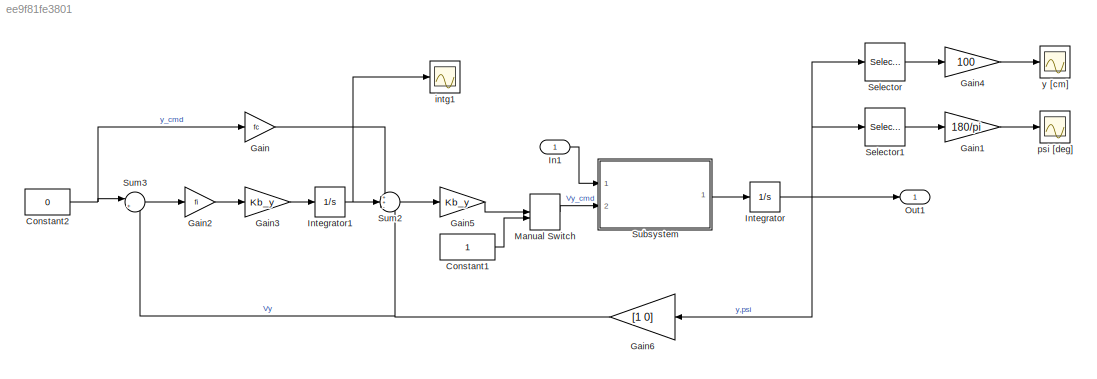
MODEL slx_ee9f81fe3801
KIND model
CONFIG AbsTol = auto
CONFIG EnableMultiTasking = off
CONFIG FixedStep = 0.001
CONFIG MaxStep = auto
CONFIG MinStep = auto
CONFIG RelTol = 1e-3
CONFIG SampleTimeConstraint = Unconstrained
CONFIG Solver = ode3
CONFIG SolverName = ode3
CONFIG StartTime = 0.0
CONFIG StopTime = 10
BLOCK [Constant] Constant1
BLOCK [Constant] Constant2
  Value = 0
BLOCK [Gain] Gain
  Gain = fc
  OutDataTypeStr = Inherit: Inherit via internal rule
  ParamDataTypeStr = Inherit: Inherit via internal rule
  SaturateOnIntegerOverflow = off
BLOCK [Gain] Gain1
  Gain = 180/pi
  OutDataTypeStr = Inherit: Inherit via internal rule
  ParamDataTypeStr = Inherit: Inherit via internal rule
  SaturateOnIntegerOverflow = off
BLOCK [Gain] Gain2
  Gain = fi
  OutDataTypeStr = Inherit: Inherit via internal rule
  ParamDataTypeStr = Inherit: Inherit via internal rule
  SaturateOnIntegerOverflow = off
BLOCK [Gain] Gain3
  Gain = Kb_y
  OutDataTypeStr = Inherit: Inherit via internal rule
  ParamDataTypeStr = Inherit: Inherit via internal rule
  SaturateOnIntegerOverflow = off
BLOCK [Gain] Gain4
  Gain = 100
  OutDataTypeStr = Inherit: Inherit via internal rule
  ParamDataTypeStr = Inherit: Inherit via internal rule
  SaturateOnIntegerOverflow = off
BLOCK [Gain] Gain5
  Gain = Kb_y
  OutDataTypeStr = Inherit: Inherit via internal rule
  ParamDataTypeStr = Inherit: Inherit via internal rule
  SaturateOnIntegerOverflow = off
BLOCK [Gain] Gain6
  Gain = [1 0]
  Multiplication = Matrix(K*u)
  OutDataTypeStr = Inherit: Inherit via internal rule
  ParamDataTypeStr = Inherit: Inherit via internal rule
  SaturateOnIntegerOverflow = off
BLOCK [Inport] In1
  IconDisplay = Port number
BLOCK [Integrator] Integrator
  Ports = [1, 1]
BLOCK [Integrator] Integrator1
  Ports = [1, 1]
BLOCK [ManualSwitch] Manual Switch
BLOCK [Outport] Out1
  IconDisplay = Port number
BLOCK [Selector] Selector
  IndexOptions = Index vector (dialog)
  Indices = 1
  InputPortWidth = 2
  OutputSizes = 1
  Ports = [1, 1]
BLOCK [Selector] Selector1
  IndexOptions = Index vector (dialog)
  Indices = 1
  InputPortWidth = 2
  OutputSizes = 1
  Ports = [1, 1]
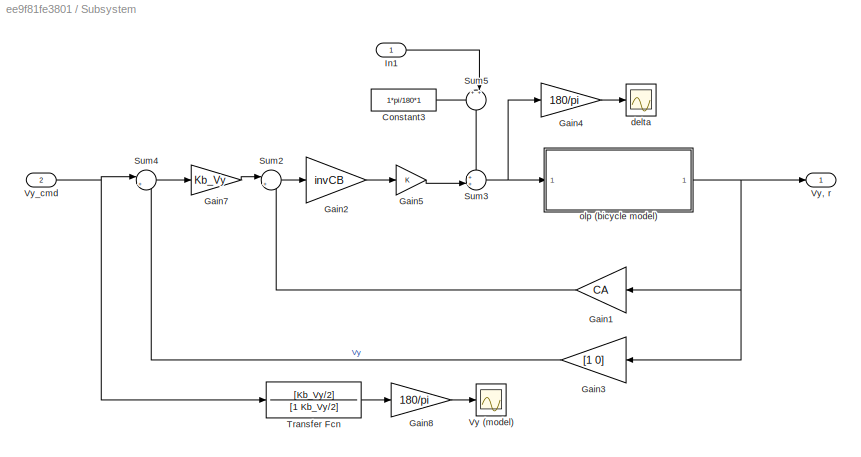
BLOCK [SubSystem] Subsystem
  Ports = [2, 1]
  RequestExecContextInheritance = off
BLOCK [Constant] Subsystem/Constant3
  Value = 1*pi/180*1
BLOCK [Gain] Subsystem/Gain1
  Gain = CA
  Multiplication = Matrix(K*u)
  OutDataTypeStr = Inherit: Inherit via internal rule
  ParamDataTypeStr = Inherit: Inherit via internal rule
  SaturateOnIntegerOverflow = off
BLOCK [Gain] Subsystem/Gain2
  Gain = invCB
  Multiplication = Matrix(K*u)
  OutDataTypeStr = Inherit: Inherit via internal rule
  ParamDataTypeStr = Inherit: Inherit via internal rule
  SaturateOnIntegerOverflow = off
BLOCK [Gain] Subsystem/Gain3
  Gain = [1 0]
  Multiplication = Matrix(K*u)
  OutDataTypeStr = Inherit: Inherit via internal rule
  ParamDataTypeStr = Inherit: Inherit via internal rule
  SaturateOnIntegerOverflow = off
BLOCK [Gain] Subsystem/Gain4
  Gain = 180/pi
  Multiplication = Matrix(K*u)
  OutDataTypeStr = Inherit: Inherit via internal rule
  ParamDataTypeStr = Inherit: Inherit via internal rule
  SaturateOnIntegerOverflow = off
BLOCK [Gain] Subsystem/Gain5
  OutDataTypeStr = Inherit: Inherit via internal rule
  ParamDataTypeStr = Inherit: Inherit via internal rule
  SaturateOnIntegerOverflow = off
BLOCK [Gain] Subsystem/Gain7
  Gain = Kb_Vy
  OutDataTypeStr = Inherit: Inherit via internal rule
  ParamDataTypeStr = Inherit: Inherit via internal rule
  SaturateOnIntegerOverflow = off
BLOCK [Gain] Subsystem/Gain8
  Gain = 180/pi
  Multiplication = Matrix(K*u)
  OutDataTypeStr = Inherit: Inherit via internal rule
  ParamDataTypeStr = Inherit: Inherit via internal rule
  SaturateOnIntegerOverflow = off
BLOCK [Inport] Subsystem/In1
  IconDisplay = Port number
BLOCK [Sum] Subsystem/Sum2
  IconShape = round
  InputSameDT = off
  Inputs = |+-
  OutDataTypeStr = Inherit: Inherit via internal rule
  Ports = [2, 1]
  SaturateOnIntegerOverflow = off
BLOCK [Sum] Subsystem/Sum3
  IconShape = round
  InputSameDT = off
  Inputs = ++|
  OutDataTypeStr = Inherit: Inherit via internal rule
  Ports = [2, 1]
  SaturateOnIntegerOverflow = off
BLOCK [Sum] Subsystem/Sum4
  IconShape = round
  InputSameDT = off
  Inputs = |+-
  OutDataTypeStr = Inherit: Inherit via internal rule
  Ports = [2, 1]
  SaturateOnIntegerOverflow = off
BLOCK [Sum] Subsystem/Sum5
  IconShape = round
  InputSameDT = off
  Inputs = ++|
  OutDataTypeStr = Inherit: Inherit via internal rule
  Ports = [2, 1]
  SaturateOnIntegerOverflow = off
BLOCK [TransferFcn] Subsystem/Transfer Fcn
  Denominator = [1 Kb_Vy/2]
  Numerator = [Kb_Vy/2]
BLOCK [Scope] Subsystem/Vy (model)
  Floating = off
  NumInputPorts = 1
  Ports = [1]
  ScopeSpecificationString = Simulink.scopes.TimeScopeBlockCfg('CurrentConfiguration', extmgr.ConfigurationSet(extmgr.Configuration('Core','General UI',true),extmgr.Configuration('Core','Source UI',true),extmgr.Configuration('Sources','WiredSimulink',true,'DataLoggingVariableName','ScopeData1'),extmgr.Configuration('Visuals','Time Domain',true,'SerializedDisplays',{struct('MinYLimReal','-11.36088','MaxYLimReal','1.26232','YLa...<+1397ch>
BLOCK [Outport] Subsystem/Vy, r
  IconDisplay = Port number
BLOCK [Inport] Subsystem/Vy_cmd
  IconDisplay = Port number
  Port = 2
BLOCK [Scope] Subsystem/delta
  Floating = off
  NumInputPorts = 1
  Ports = [1]
  ScopeSpecificationString = Simulink.scopes.TimeScopeBlockCfg('CurrentConfiguration', extmgr.ConfigurationSet(extmgr.Configuration('Core','General UI',true),extmgr.Configuration('Core','Source UI',true),extmgr.Configuration('Sources','WiredSimulink',true,'DataLoggingVariableName','ScopeData3'),extmgr.Configuration('Visuals','Time Domain',true,'SerializedDisplays',{struct('MinYLimReal','-0.30382','MaxYLimReal','2.76099','YLab...<+1393ch>
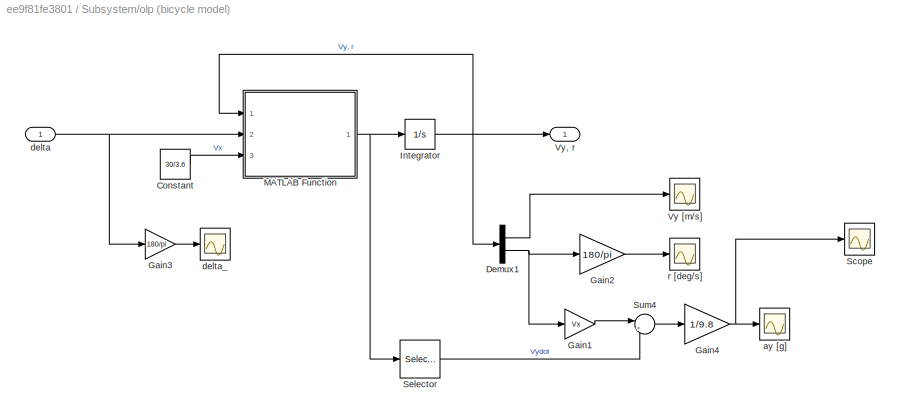
BLOCK [SubSystem] Subsystem/olp (bicycle model)
  Ports = [1, 1]
  RequestExecContextInheritance = off
BLOCK [Constant] Subsystem/olp (bicycle model)/Constant
  Value = 30/3.6
BLOCK [Demux] Subsystem/olp (bicycle model)/Demux1
  DisplayOption = bar
  Outputs = 2
  Ports = [1, 2]
BLOCK [Gain] Subsystem/olp (bicycle model)/Gain1
  Gain = Vx
  OutDataTypeStr = Inherit: Inherit via internal rule
  ParamDataTypeStr = Inherit: Inherit via internal rule
  SaturateOnIntegerOverflow = off
BLOCK [Gain] Subsystem/olp (bicycle model)/Gain2
  Gain = 180/pi
  OutDataTypeStr = Inherit: Inherit via internal rule
  ParamDataTypeStr = Inherit: Inherit via internal rule
  SaturateOnIntegerOverflow = off
BLOCK [Gain] Subsystem/olp (bicycle model)/Gain3
  Gain = 180/pi
  OutDataTypeStr = Inherit: Inherit via internal rule
  ParamDataTypeStr = Inherit: Inherit via internal rule
  SaturateOnIntegerOverflow = off
BLOCK [Gain] Subsystem/olp (bicycle model)/Gain4
  Gain = 1/9.8
  OutDataTypeStr = Inherit: Inherit via internal rule
  ParamDataTypeStr = Inherit: Inherit via internal rule
  SaturateOnIntegerOverflow = off
BLOCK [Integrator] Subsystem/olp (bicycle model)/Integrator
  InitialCondition = [0;0]
  Ports = [1, 1]
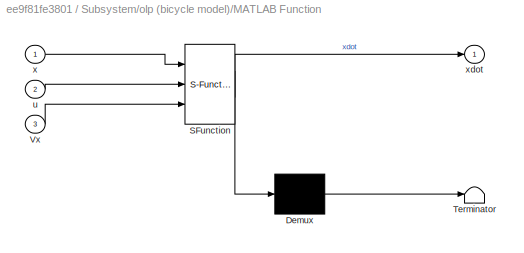
BLOCK [SubSystem] Subsystem/olp (bicycle model)/MATLAB Function
  ErrorFcn = Stateflow.Translate.translate
  PermitHierarchicalResolution = ExplicitOnly
  Ports = [3, 1]
  RequestExecContextInheritance = off
  SFBlockType = MATLAB Function
  TreatAsAtomicUnit = on
BLOCK [Demux] Subsystem/olp (bicycle model)/MATLAB Function/ Demux 
  Outputs = 1
  Ports = [1, 1]
BLOCK [S-Function] Subsystem/olp (bicycle model)/MATLAB Function/ SFunction 
  EnableBusSupport = on
  FunctionName = sf_sfun
  PortCounts = [3 2]
  Ports = [3, 2]
  SFcnIsStateOwnerBlock = off
  SFunctionDeploymentMode = off
  Tag = Stateflow S-Function sim_linear_control_y 2
BLOCK [Terminator] Subsystem/olp (bicycle model)/MATLAB Function/ Terminator 
BLOCK [Inport] Subsystem/olp (bicycle model)/MATLAB Function/Vx
  IconDisplay = Port number
  Port = 3
BLOCK [Inport] Subsystem/olp (bicycle model)/MATLAB Function/u
  IconDisplay = Port number
  Port = 2
BLOCK [Inport] Subsystem/olp (bicycle model)/MATLAB Function/x
  IconDisplay = Port number
BLOCK [Outport] Subsystem/olp (bicycle model)/MATLAB Function/xdot
  IconDisplay = Port number
BLOCK [Scope] Subsystem/olp (bicycle model)/Scope
  Floating = off
  NumInputPorts = 1
  Ports = [1]
  ScopeSpecificationString = Simulink.scopes.TimeScopeBlockCfg('CurrentConfiguration', extmgr.ConfigurationSet(extmgr.Configuration('Core','General UI',true),extmgr.Configuration('Core','Source UI',true),extmgr.Configuration('Sources','WiredSimulink',true,'DataLoggingVariableName','ScopeData1'),extmgr.Configuration('Visuals','Time Domain',true,'SerializedDisplays',{struct('MinYLimReal','-0.04708','MaxYLimReal','0.14297','YLab...<+1493ch>
BLOCK [Selector] Subsystem/olp (bicycle model)/Selector
  IndexOptions = Index vector (dialog)
  Indices = 1
  InputPortWidth = 2
  OutputSizes = 1
  Ports = [1, 1]
BLOCK [Sum] Subsystem/olp (bicycle model)/Sum4
  IconShape = round
  InputSameDT = off
  Inputs = |++
  OutDataTypeStr = Inherit: Inherit via internal rule
  Ports = [2, 1]
  SaturateOnIntegerOverflow = off
BLOCK [Scope] Subsystem/olp (bicycle model)/Vy [m//s]
  Floating = off
  NumInputPorts = 1
  Ports = [1]
  ScopeSpecificationString = Simulink.scopes.TimeScopeBlockCfg('CurrentConfiguration', extmgr.ConfigurationSet(extmgr.Configuration('Core','General UI',true),extmgr.Configuration('Core','Source UI',true),extmgr.Configuration('Sources','WiredSimulink',true,'DataLoggingVariableName','ScopeData3'),extmgr.Configuration('Visuals','Time Domain',true,'SerializedDisplays',{struct('MinYLimReal','-1.00000','MaxYLimReal','1.00000','YLab...<+1442ch>
BLOCK [Outport] Subsystem/olp (bicycle model)/Vy, r
  IconDisplay = Port number
BLOCK [Scope] Subsystem/olp (bicycle model)/ay [g]
  Floating = off
  NumInputPorts = 1
  Ports = [1]
  ScopeSpecificationString = Simulink.scopes.TimeScopeBlockCfg('CurrentConfiguration', extmgr.ConfigurationSet(extmgr.Configuration('Core','General UI',true),extmgr.Configuration('Core','Source UI',true),extmgr.Configuration('Sources','WiredSimulink',true,'DataLoggingVariableName','ScopeData1'),extmgr.Configuration('Visuals','Time Domain',true,'SerializedDisplays',{struct('MinYLimReal','-0.04708','MaxYLimReal','0.14297','YLab...<+1438ch>
BLOCK [Inport] Subsystem/olp (bicycle model)/delta
  IconDisplay = Port number
BLOCK [Scope] Subsystem/olp (bicycle model)/delta_
  Floating = off
  NumInputPorts = 1
  Ports = [1]
  ScopeSpecificationString = Simulink.scopes.TimeScopeBlockCfg('CurrentConfiguration', extmgr.ConfigurationSet(extmgr.Configuration('Core','General UI',true),extmgr.Configuration('Core','Source UI',true),extmgr.Configuration('Sources','WiredSimulink',true,'DataLoggingVariableName','ScopeData5'),extmgr.Configuration('Visuals','Time Domain',true,'SerializedDisplays',{struct('MinYLimReal','20.00000','MaxYLimReal','40.00000','YLa...<+1399ch>
BLOCK [Scope] Subsystem/olp (bicycle model)/r [deg//s]
  Floating = off
  NumInputPorts = 1
  Ports = [1]
  ScopeSpecificationString = Simulink.scopes.TimeScopeBlockCfg('CurrentConfiguration', extmgr.ConfigurationSet(extmgr.Configuration('Core','General UI',true),extmgr.Configuration('Core','Source UI',true),extmgr.Configuration('Sources','WiredSimulink',true,'DataLoggingVariableName','ScopeData4'),extmgr.Configuration('Visuals','Time Domain',true,'SerializedDisplays',{struct('MinYLimReal','3.19701','MaxYLimReal','3.23098','YLabe...<+1437ch>
BLOCK [Sum] Sum2
  IconShape = round
  InputSameDT = off
  Inputs = ++-
  OutDataTypeStr = Inherit: Inherit via internal rule
  Ports = [3, 1]
  SaturateOnIntegerOverflow = off
BLOCK [Sum] Sum3
  IconShape = round
  InputSameDT = off
  Inputs = |+-
  OutDataTypeStr = Inherit: Inherit via internal rule
  Ports = [2, 1]
  SaturateOnIntegerOverflow = off
BLOCK [Scope] intg1
  Floating = off
  NumInputPorts = 1
  Ports = [1]
  ScopeSpecificationString = Simulink.scopes.TimeScopeBlockCfg('CurrentConfiguration', extmgr.ConfigurationSet(extmgr.Configuration('Core','General UI',true),extmgr.Configuration('Core','Source UI',true),extmgr.Configuration('Sources','WiredSimulink',true,'DataLoggingVariableName','ScopeData2'),extmgr.Configuration('Visuals','Time Domain',true,'SerializedDisplays',{struct('MinYLimReal','-1.00000','MaxYLimReal','1.00000','YLab...<+1419ch>
BLOCK [Scope] psi [deg]
  Floating = off
  NumInputPorts = 1
  Ports = [1]
  ScopeSpecificationString = Simulink.scopes.TimeScopeBlockCfg('CurrentConfiguration', extmgr.ConfigurationSet(extmgr.Configuration('Core','General UI',true),extmgr.Configuration('Core','Source UI',true),extmgr.Configuration('Sources','WiredSimulink',true,'DataLoggingVariableName','ScopeData1'),extmgr.Configuration('Visuals','Time Domain',true,'SerializedDisplays',{struct('MinYLimReal','-1.00000','MaxYLimReal','1.00000','YLab...<+1412ch>
BLOCK [Scope] y [cm]
  Floating = off
  NumInputPorts = 1
  Ports = [1]
  ScopeSpecificationString = Simulink.scopes.TimeScopeBlockCfg('CurrentConfiguration', extmgr.ConfigurationSet(extmgr.Configuration('Core','General UI',true),extmgr.Configuration('Core','Source UI',true),extmgr.Configuration('Sources','WiredSimulink',true,'DataLoggingVariableName','ScopeData2'),extmgr.Configuration('Visuals','Time Domain',true,'SerializedDisplays',{struct('MinYLimReal','-0.77167','MaxYLimReal','6.94503','YLab...<+1439ch>
LINE Constant1:1 -> Manual Switch:2
NET Constant2:1 -> Gain:1, Sum3:1
LINE Gain1:1 -> psi [deg]:1
LINE Gain2:1 -> Gain3:1
LINE Gain3:1 -> Integrator1:1
LINE Gain4:1 -> y [cm]:1
LINE Gain5:1 -> Manual Switch:1
NET Gain6:1 -> Sum2:3, Sum3:2
LINE Gain:1 -> Sum2:1
LINE In1:1 -> Subsystem:1
NET Integrator1:1 -> Sum2:2, intg1:1
NET Integrator:1 -> Gain6:1, Out1:1, Selector1:1, Selector:1
LINE Manual Switch:1 -> Subsystem:2
LINE Selector1:1 -> Gain1:1
LINE Selector:1 -> Gain4:1
LINE Subsystem/Constant3:1 -> Subsystem/Sum5:1
LINE Subsystem/Gain1:1 -> Subsystem/Sum2:2
LINE Subsystem/Gain2:1 -> Subsystem/Gain5:1
LINE Subsystem/Gain3:1 -> Subsystem/Sum4:2
LINE Subsystem/Gain4:1 -> Subsystem/delta:1
LINE Subsystem/Gain5:1 -> Subsystem/Sum3:2
LINE Subsystem/Gain7:1 -> Subsystem/Sum2:1
LINE Subsystem/Gain8:1 -> Subsystem/Vy (model):1
LINE Subsystem/In1:1 -> Subsystem/Sum5:2
LINE Subsystem/Sum2:1 -> Subsystem/Gain2:1
NET Subsystem/Sum3:1 -> Subsystem/Gain4:1, Subsystem/olp (bicycle model):1
LINE Subsystem/Sum4:1 -> Subsystem/Gain7:1
LINE Subsystem/Sum5:1 -> Subsystem/Sum3:1
LINE Subsystem/Transfer Fcn:1 -> Subsystem/Gain8:1
NET Subsystem/Vy_cmd:1 -> Subsystem/Sum4:1, Subsystem/Transfer Fcn:1
LINE Subsystem/olp (bicycle model)/Constant:1 -> Subsystem/olp (bicycle model)/MATLAB Function:3
LINE Subsystem/olp (bicycle model)/Demux1:1 -> Subsystem/olp (bicycle model)/Vy [m//s]:1
NET Subsystem/olp (bicycle model)/Demux1:2 -> Subsystem/olp (bicycle model)/Gain1:1, Subsystem/olp (bicycle model)/Gain2:1
LINE Subsystem/olp (bicycle model)/Gain1:1 -> Subsystem/olp (bicycle model)/Sum4:1
LINE Subsystem/olp (bicycle model)/Gain2:1 -> Subsystem/olp (bicycle model)/r [deg//s]:1
LINE Subsystem/olp (bicycle model)/Gain3:1 -> Subsystem/olp (bicycle model)/delta_:1
NET Subsystem/olp (bicycle model)/Gain4:1 -> Subsystem/olp (bicycle model)/Scope:1, Subsystem/olp (bicycle model)/ay [g]:1
NET Subsystem/olp (bicycle model)/Integrator:1 -> Subsystem/olp (bicycle model)/Demux1:1, Subsystem/olp (bicycle model)/MATLAB Function:1, Subsystem/olp (bicycle model)/Vy, r:1
NET Subsystem/olp (bicycle model)/MATLAB Function:1 -> Subsystem/olp (bicycle model)/Integrator:1, Subsystem/olp (bicycle model)/Selector:1
LINE Subsystem/olp (bicycle model)/Selector:1 -> Subsystem/olp (bicycle model)/Sum4:2
LINE Subsystem/olp (bicycle model)/Sum4:1 -> Subsystem/olp (bicycle model)/Gain4:1
NET Subsystem/olp (bicycle model)/delta:1 -> Subsystem/olp (bicycle model)/Gain3:1, Subsystem/olp (bicycle model)/MATLAB Function:2
NET Subsystem/olp (bicycle model):1 -> Subsystem/Gain1:1, Subsystem/Gain3:1, Subsystem/Vy, r:1
LINE Subsystem:1 -> Integrator:1
LINE Sum2:1 -> Gain5:1
LINE Sum3:1 -> Gain2:1
note: NET lines group one-source signal fan-out (src -> all destinations, sorted); 1:1 wires keep LINE
CHART Subsystem/olp (bicycle model)/MATLAB Function states=1 transitions=1
  STATE_LABEL 'eML_blk_kernel()'
  STATE_LABEL 'SCRIPT:\nfunction xdot = dynamic_lin(x,u,Vx)\n\n% sports sedan\n\nm = 1724; % kg\nIz = 3400; % kg/m^2\na = 1.35; % m\nb = 1.15; % m\nCf = 12*1e4; % N/rad\nCr = 175*1e3; % N/rad\nmu = 0.5225;\n\n% x = [vy r]\n% u = delta\n\nA = [-(Cf+Cr)/(m*Vx)  -(a*Cf-b*Cr)/(m*Vx)-Vx; \n    -(a*Cf-b*Cr)/(Iz*Vx) -(a^2*Cf+b^2*Cr)/(Iz*Vx)];\n\nB = [Cf/m; a*Cf/Iz];\n\nxdot = A*x + B*u;\n'
